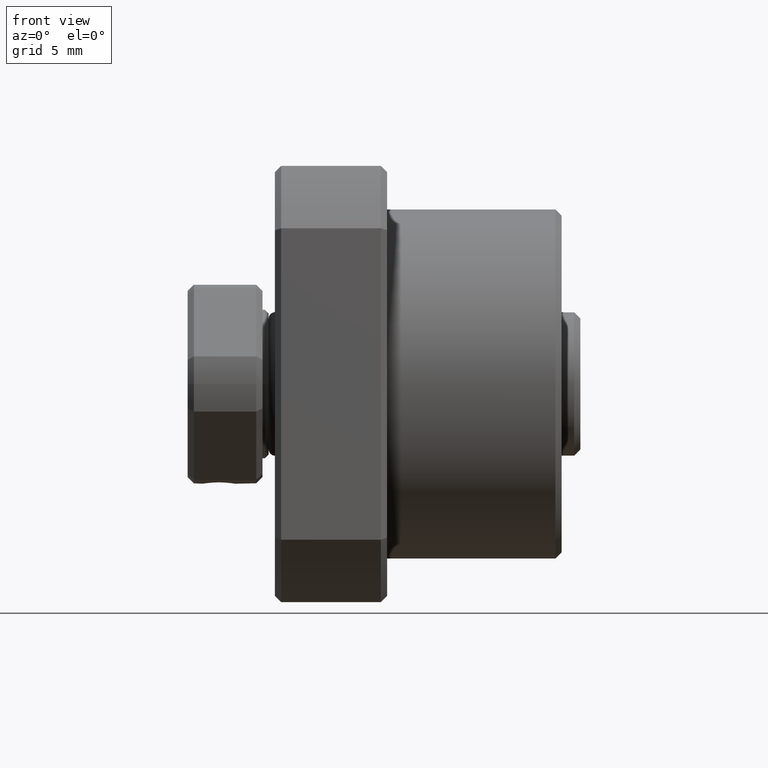
[diagram: clean part render]
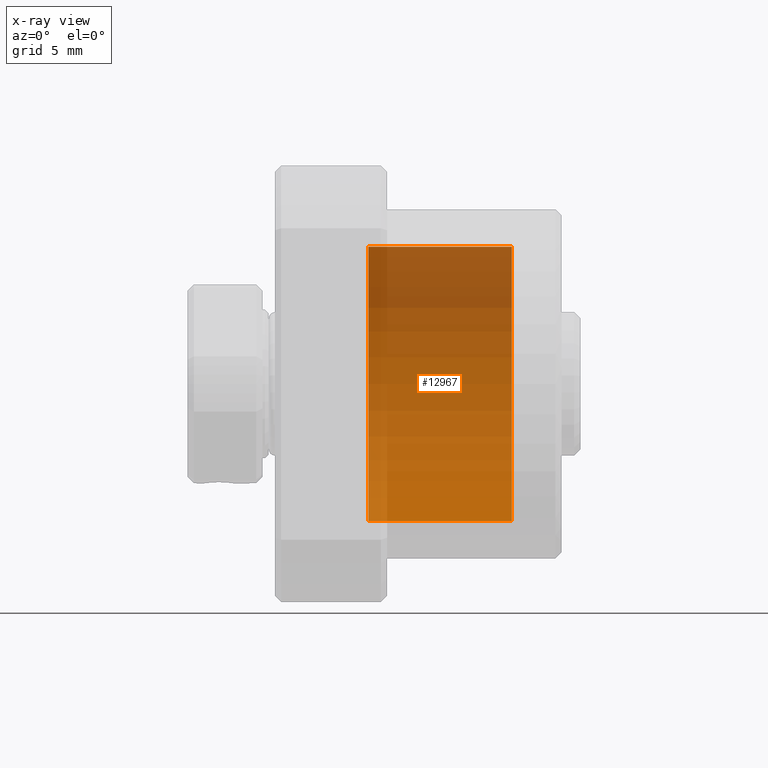
[diagram: x-ray — body ghosted, one internal face saturated and labeled with its STEP entity id]
A machine part, front view, then the same camera in x-ray: the body is ghosted and one INTERNAL B-rep face — a face not visible from any outside direction — is saturated and labeled: STEP entity #12967.
In plain terms, the highlighted cylindrical surface (partial cylindrical patch) has radius 11 mm, axis along (-1, -0, -0).
Its self-contained STEP definition (entity closure, byte-faithful):
#12492 = VERTEX_POINT ( 'NONE', #47771 ) ;
#12494 = VERTEX_POINT ( 'NONE', #47770 ) ;
#12692 = VERTEX_POINT ( 'NONE', #48493 ) ;
#12825 = VERTEX_POINT ( 'NONE', #48637 ) ;
#12830 = EDGE_CURVE ( 'NONE', #12692, #12492, #48636, .T. ) ;
#12835 = EDGE_CURVE ( 'NONE', #12825, #12494, #48632, .T. ) ;
#12964 = EDGE_CURVE ( 'NONE', #12825, #12692, #48795, .T. ) ;
#12967 = ADVANCED_FACE ( 'NONE', ( #48790 ), #48789, .F. ) ;
#12968 = EDGE_LOOP ( 'NONE', ( #12969, #12970, #12971, #12972 ) ) ;
#12969 = ORIENTED_EDGE ( 'NONE', *, *, #12830, .F. ) ;
#12970 = ORIENTED_EDGE ( 'NONE', *, *, #12964, .F. ) ;
#12971 = ORIENTED_EDGE ( 'NONE', *, *, #12835, .T. ) ;
#12972 = ORIENTED_EDGE ( 'NONE', *, *, #12973, .T. ) ;
#12973 = EDGE_CURVE ( 'NONE', #12494, #12492, #48784, .T. ) ;
#47770 = CARTESIAN_POINT ( 'NONE',  ( 7.499999999999992900, 0.0000000000000000000, 11.00000000000000000 ) ) ;
#47771 = CARTESIAN_POINT ( 'NONE',  ( 7.499999999999992900, 1.347066989204615000E-015, -11.00000000000000000 ) ) ;
#48493 = CARTESIAN_POINT ( 'NONE',  ( 19.00000000000000400, 1.347066989204615000E-015, -11.00000000000000000 ) ) ;
#48629 = DIRECTION ( 'NONE',  ( -1.000000000000000000, -0.0000000000000000000, -0.0000000000000000000 ) ) ;
#48630 = VECTOR ( 'NONE', #48629, 1000.000000000000000 ) ;
#48631 = CARTESIAN_POINT ( 'NONE',  ( -94.46891865289678900, 0.0000000000000000000, 11.00000000000000000 ) ) ;
#48632 = LINE ( 'NONE', #48631, #48630 ) ;
#48633 = DIRECTION ( 'NONE',  ( -1.000000000000000000, -0.0000000000000000000, -0.0000000000000000000 ) ) ;
#48634 = VECTOR ( 'NONE', #48633, 1000.000000000000000 ) ;
#48635 = CARTESIAN_POINT ( 'NONE',  ( -94.46891865289678900, 1.347066989204615000E-015, -11.00000000000000000 ) ) ;
#48636 = LINE ( 'NONE', #48635, #48634 ) ;
#48637 = CARTESIAN_POINT ( 'NONE',  ( 19.00000000000000400, 0.0000000000000000000, 11.00000000000000000 ) ) ;
#48780 = DIRECTION ( 'NONE',  ( 0.0000000000000000000, 0.0000000000000000000, -1.000000000000000000 ) ) ;
#48781 = DIRECTION ( 'NONE',  ( -1.000000000000000000, 0.0000000000000000000, 0.0000000000000000000 ) ) ;
#48782 = CARTESIAN_POINT ( 'NONE',  ( 7.499999999999992900, 0.0000000000000000000, 0.0000000000000000000 ) ) ;
#48783 = AXIS2_PLACEMENT_3D ( 'NONE', #48782, #48781, #48780 ) ;
#48784 = CIRCLE ( 'NONE', #48783, 11.00000000000000000 ) ;
#48785 = DIRECTION ( 'NONE',  ( 0.0000000000000000000, 0.0000000000000000000, 1.000000000000000000 ) ) ;
#48786 = DIRECTION ( 'NONE',  ( -1.000000000000000000, -0.0000000000000000000, -0.0000000000000000000 ) ) ;
#48787 = CARTESIAN_POINT ( 'NONE',  ( -94.46891865289678900, 0.0000000000000000000, 0.0000000000000000000 ) ) ;
#48788 = AXIS2_PLACEMENT_3D ( 'NONE', #48787, #48786, #48785 ) ;
#48789 = CYLINDRICAL_SURFACE ( 'NONE', #48788, 11.00000000000000000 ) ;
#48790 = FACE_OUTER_BOUND ( 'NONE', #12968, .T. ) ;
#48791 = DIRECTION ( 'NONE',  ( 0.0000000000000000000, 0.0000000000000000000, 1.000000000000000000 ) ) ;
#48792 = DIRECTION ( 'NONE',  ( -1.000000000000000000, -0.0000000000000000000, -0.0000000000000000000 ) ) ;
#48793 = CARTESIAN_POINT ( 'NONE',  ( 19.00000000000000400, 0.0000000000000000000, 0.0000000000000000000 ) ) ;
#48794 = AXIS2_PLACEMENT_3D ( 'NONE', #48793, #48792, #48791 ) ;
#48795 = CIRCLE ( 'NONE', #48794, 11.00000000000000000 ) ;